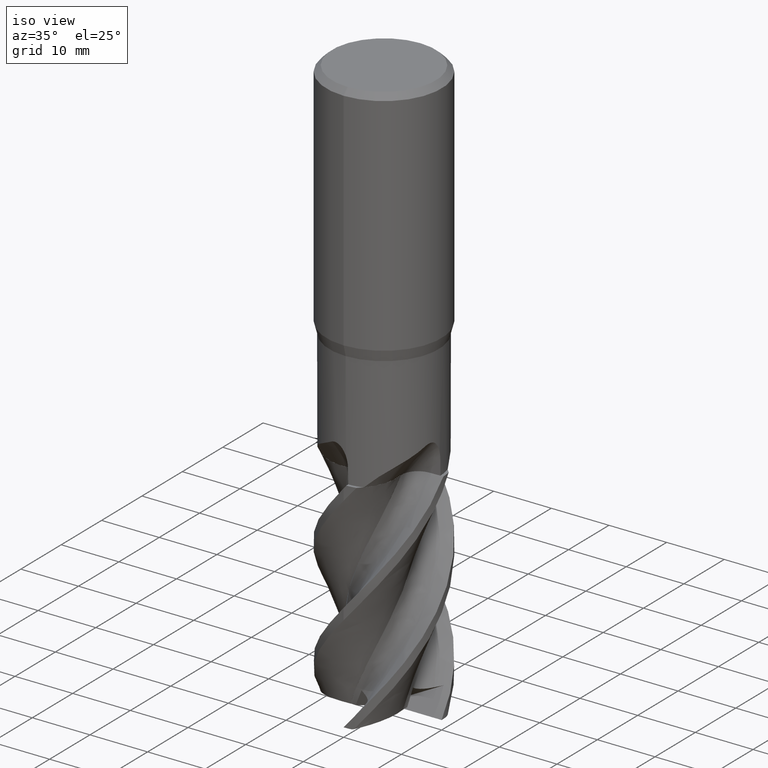
[diagram: clean part render]
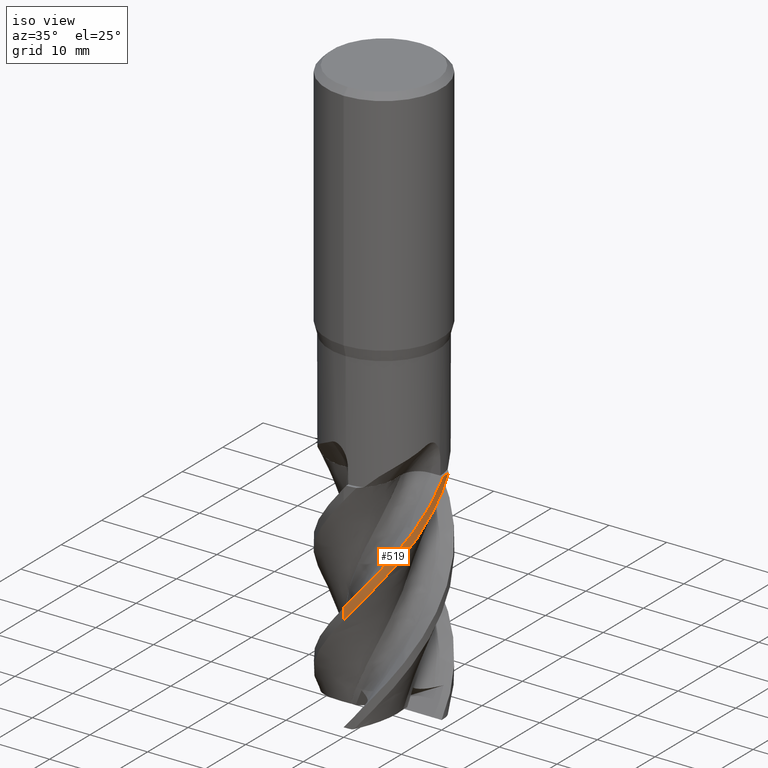
[diagram: same view with one face highlighted and labeled with its STEP entity id]
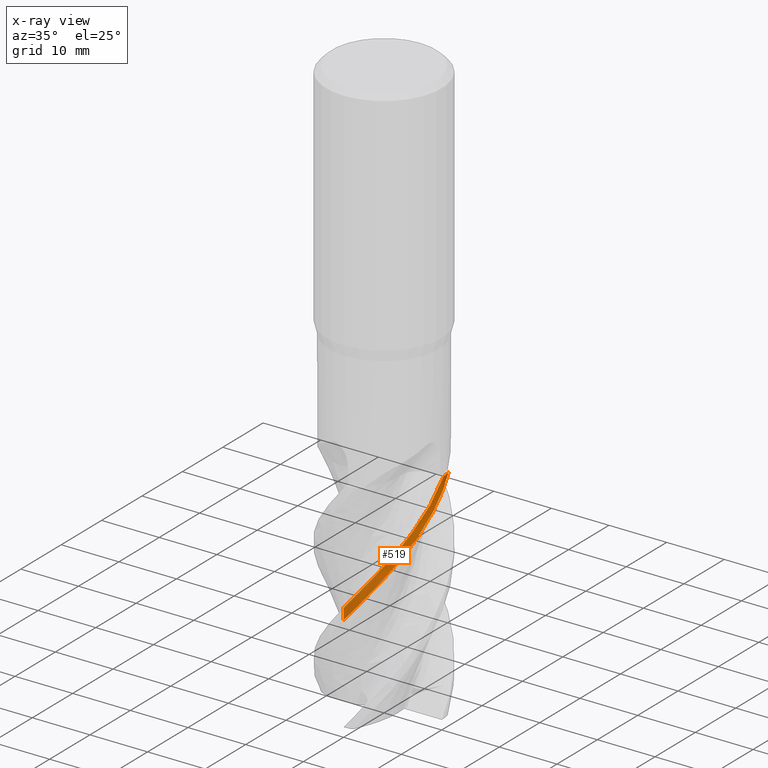
[diagram: x-ray of the same camera — body ghosted, the highlighted face saturated]
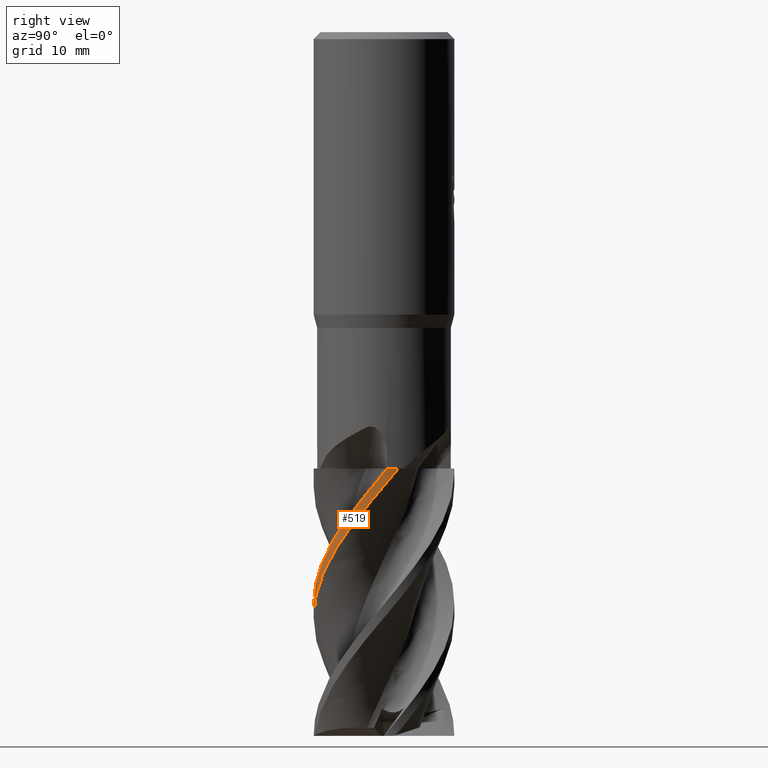
[diagram: same view with one face highlighted and labeled with its STEP entity id]
A machine part, iso view. The second image highlights one B-rep face of the part: STEP entity #519.
The next image is the same camera in x-ray: the body ghosted, the highlighted face saturated — about 0% of this face is hidden behind the body in this view.
A second angle (right view) of the same face is appended — the face is thin or edge-on in the first view.
In plain terms, the highlighted conical surface has half-angle 0 deg.
Its self-contained STEP definition (entity closure, byte-faithful):
#519=ADVANCED_FACE('',(#1475),#1476,.T.);
#649=VERTEX_POINT('',#1617);
#687=VERTEX_POINT('',#1658);
#721=EDGE_CURVE('',#687,#1181,#1693,.T.);
#777=VERTEX_POINT('',#1755);
#907=EDGE_CURVE('',#687,#649,#1893,.T.);
#1181=VERTEX_POINT('',#2194);
#1223=EDGE_CURVE('',#649,#777,#2242,.T.);
#1295=EDGE_CURVE('',#777,#1181,#2321,.T.);
#1475=FACE_OUTER_BOUND('',#2757,.T.);
#1476=CONICAL_SURFACE('',#2758,9.99995,2.63157894735621E-006);
#1617=CARTESIAN_POINT('',(9.78519421697264,2.06106141250669,-62.0));
#1658=CARTESIAN_POINT('',(1.67850642606862E-012,-9.99995578370923,-83.1978095066168));
#1693=LINE('',#4052,#4053);
#1755=CARTESIAN_POINT('',(9.98972429040193,0.451008438672389,-62.0));
#1893=B_SPLINE_CURVE_WITH_KNOTS('',3,(#5786,#5787,#5788,#5789,#5790,#5791,#5792,#5793,#5794,#5795,#5796,#5797,#5798,#5799,#5800,#5801,#5802,#5803,#5804,#5805,#5806,#5807,#5808,#5809,#5810,#5811,#5812,#5813,#5814,#5815,#5816,#5817,#5818,#5819,#5820,#5821),.UNSPECIFIED.,.F.,.F.,(4,2,2,2,2,2,2,2,2,2,2,2,2,2,2,2,2,4),(0.0,4.59320734126855,6.94880335420758,11.5993553662581,13.6317545591004,16.260923862877,17.4256617960653,19.7258373906148,24.2942597548981,25.4384139385894,29.8716777432233,32.0192538067041,36.0590950061642,37.5939142102604,41.4322466134332,42.3250975297501,43.928497497823,48.1224602192061),.UNSPECIFIED.);
#2194=CARTESIAN_POINT('',(4.70472558614338E-010,-9.99995068375359,-81.259826360799));
#2242=CIRCLE('',#9454,9.9999);
#2321=B_SPLINE_CURVE_WITH_KNOTS('',3,(#9900,#9901,#9902,#9903,#9904,#9905,#9906,#9907,#9908,#9909,#9910,#9911,#9912,#9913,#9914,#9915,#9916,#9917,#9918,#9919,#9920,#9921,#9922,#9923,#9924,#9925,#9926,#9927,#9928,#9929,#9930,#9931,#9932,#9933,#9934,#9935,#9936,#9937,#9938,#9939),.UNSPECIFIED.,.F.,.F.,(4,2,2,2,2,2,2,2,2,2,2,2,2,2,2,2,2,2,2,4),(0.0,2.30480189529895,4.68410020007811,7.03288339116904,11.6834955460757,13.7695380301898,16.3845924605886,18.458083328431,20.7561560651042,23.1484580736395,24.1989823300146,26.1998280600405,30.8580814014543,33.4031036239808,38.1646251640071,42.9208798005525,46.4830910845162,47.8263029897806,51.8284426502511,56.9867655885009),.UNSPECIFIED.);
#2757=EDGE_LOOP('',(#10772,#10773,#10774,#10775));
#2758=AXIS2_PLACEMENT_3D('',#10776,#10777,#10778);
#4052=CARTESIAN_POINT('',(1.22498162135769E-015,-9.99995,-81.0));
#4053=VECTOR('',#10974,1.0);
#5786=CARTESIAN_POINT('',(-9.86977801631955,-1.60856517075787,-100.0));
#5787=CARTESIAN_POINT('',(-9.7107963952434,-2.58401992060812,-98.8306473986634));
#5788=CARTESIAN_POINT('',(-9.4083985433116,-3.5287644008817,-97.6368745601126));
#5789=CARTESIAN_POINT('',(-8.75082182019483,-4.8660135441521,-95.8649065067338));
#5790=CARTESIAN_POINT('',(-8.4958854284321,-5.29859457323579,-95.2810462792775));
#5791=CARTESIAN_POINT('',(-7.63706351200326,-6.53226411699046,-93.491868838664));
#5792=CARTESIAN_POINT('',(-6.94625948259123,-7.26325337270023,-92.2821296451416));
#5793=CARTESIAN_POINT('',(-5.81052453200675,-8.15042339210991,-90.580855392972));
#5794=CARTESIAN_POINT('',(-5.44857794442005,-8.39692668894866,-90.0678882191782));
#5795=CARTESIAN_POINT('',(-4.57336812426987,-8.91131610640631,-88.8558048160957));
#5796=CARTESIAN_POINT('',(-4.05626469686163,-9.1581947823109,-88.1670369496894));
#5797=CARTESIAN_POINT('',(-3.28461880913812,-9.44852736345259,-87.1792534826557));
#5798=CARTESIAN_POINT('',(-3.04376384940838,-9.52888225196256,-86.8762129447181));
#5799=CARTESIAN_POINT('',(-2.3168477658464,-9.74084927589639,-85.9775844483009));
#5800=CARTESIAN_POINT('',(-1.82794377859317,-9.84436601020837,-85.3958513299341));
#5801=CARTESIAN_POINT('',(-0.33724387381377,-10.0442084561692,-83.6026837500665));
#5802=CARTESIAN_POINT('',(0.672473096227092,-10.0281241850163,-82.3884549000773));
#5803=CARTESIAN_POINT('',(1.91551590295862,-9.81802160464407,-80.9040319452064));
#5804=CARTESIAN_POINT('',(2.16236252136376,-9.76672044824064,-80.6085002421337));
#5805=CARTESIAN_POINT('',(3.3746223344418,-9.46554868478247,-79.1263518496059));
#5806=CARTESIAN_POINT('',(4.29706970247646,-9.08408583892197,-77.925157832934));
#5807=CARTESIAN_POINT('',(5.56106057079874,-8.32495462056487,-76.1772065319456));
#5808=CARTESIAN_POINT('',(5.95250092430322,-8.04980487808568,-75.6197190045112));
#5809=CARTESIAN_POINT('',(7.02933473659167,-7.1701641912824,-73.9619316150796));
#5810=CARTESIAN_POINT('',(7.65240865532501,-6.50157843257684,-72.8627087957007));
#5811=CARTESIAN_POINT('',(8.37660720564587,-5.47274482369622,-71.3731479101595));
#5812=CARTESIAN_POINT('',(8.55965315948838,-5.18182727415825,-70.9722495558989));
#5813=CARTESIAN_POINT('',(9.15260692808394,-4.12091754193273,-69.5302649605637));
#5814=CARTESIAN_POINT('',(9.47497766627305,-3.31240191131883,-68.4833648494961));
#5815=CARTESIAN_POINT('',(9.73886310265715,-2.27889019136236,-67.2114302881206));
#5816=CARTESIAN_POINT('',(9.78290615673946,-2.08182725194165,-66.9717168957067));
#5817=CARTESIAN_POINT('',(9.88949720453694,-1.52587094665533,-66.3033754065536));
#5818=CARTESIAN_POINT('',(9.938356371284,-1.1669666861583,-65.8797391699044));
#5819=CARTESIAN_POINT('',(10.0446282340605,0.15495706953699,-64.3012949287636));
#5820=CARTESIAN_POINT('',(9.98364009944924,1.11892475009128,-63.1393038090939));
#5821=CARTESIAN_POINT('',(9.78519421697273,2.06106141250656,-62.0));
#9454=AXIS2_PLACEMENT_3D('',#11493,#11494,#11495);
#9900=CARTESIAN_POINT('',(9.98972429040193,0.451008438672394,-62.0));
#9901=CARTESIAN_POINT('',(10.0120902724734,-0.0443582396446354,-62.586810240794));
#9902=CARTESIAN_POINT('',(9.99748225412556,-0.538476921355025,-63.1781398435295));
#9903=CARTESIAN_POINT('',(9.89486916559924,-1.53202584250799,-64.377841262681));
#9904=CARTESIAN_POINT('',(9.80424011487839,-2.03368060932425,-64.989057407567));
#9905=CARTESIAN_POINT('',(9.54770211688728,-3.0155897326726,-66.1947779619367));
#9906=CARTESIAN_POINT('',(9.38486747706296,-3.48958816290986,-66.7780496063555));
#9907=CARTESIAN_POINT('',(8.79031824200092,-4.87106062921594,-68.5698709213601));
#9908=CARTESIAN_POINT('',(8.25861438230232,-5.72759887374022,-69.7818991443943));
#9909=CARTESIAN_POINT('',(7.31264255040627,-6.83573772371703,-71.5001032281201));
#9910=CARTESIAN_POINT('',(6.9967446869978,-7.15909388998269,-72.0309961638549));
#9911=CARTESIAN_POINT('',(6.22870799040738,-7.84407423394571,-73.2610822935538));
#9912=CARTESIAN_POINT('',(5.76973135558729,-8.18755217511518,-73.9501101515125));
#9913=CARTESIAN_POINT('',(4.89906529665208,-8.72946456084346,-75.1775606340869));
#9914=CARTESIAN_POINT('',(4.50313851014507,-8.93965301995458,-75.7074958289145));
#9915=CARTESIAN_POINT('',(3.64972104457713,-9.32310123355266,-76.8074656137414));
#9916=CARTESIAN_POINT('',(3.18956896498647,-9.49008032319414,-77.3905560275707));
#9917=CARTESIAN_POINT('',(2.23515889418081,-9.76006487342666,-78.5803723381751));
#9918=CARTESIAN_POINT('',(1.73791169036898,-9.86083009807201,-79.1898556472469));
#9919=CARTESIAN_POINT('',(1.01335756522264,-9.95096440664512,-80.0615638420315));
#9920=CARTESIAN_POINT('',(0.790753696657141,-9.97115393961915,-80.3272151015896));
#9921=CARTESIAN_POINT('',(0.140767072959197,-10.0080682542258,-81.0965445674427));
#9922=CARTESIAN_POINT('',(-0.284824110560795,-10.0051407790472,-81.5943630827873));
#9923=CARTESIAN_POINT('',(-1.71241241280176,-9.90298746611478,-83.3014369723477));
#9924=CARTESIAN_POINT('',(-2.69902171193049,-9.68163003209263,-84.5165278603756));
#9925=CARTESIAN_POINT('',(-4.15329041079,-9.11338433906116,-86.3542482278656));
#9926=CARTESIAN_POINT('',(-4.65334890006675,-8.86909473839084,-87.0120622567255));
#9927=CARTESIAN_POINT('',(-6.03637631581529,-8.04144359911085,-88.945160413294));
#9928=CARTESIAN_POINT('',(-6.69874605559893,-7.45325839113661,-89.9989827651578));
#9929=CARTESIAN_POINT('',(-7.60900902744851,-6.52122551706257,-91.5282186060612));
#9930=CARTESIAN_POINT('',(-8.01412587501843,-6.01544700647727,-92.3018654996874));
#9931=CARTESIAN_POINT('',(-8.62929397817644,-5.07603968310065,-93.6505906758236));
#9932=CARTESIAN_POINT('',(-8.86420652749595,-4.65399885109208,-94.2296163586125));
#9933=CARTESIAN_POINT('',(-9.14509828372667,-4.04971727357606,-95.0216379546917));
#9934=CARTESIAN_POINT('',(-9.2176883724385,-3.88170711012633,-95.2381795546894));
#9935=CARTESIAN_POINT('',(-9.48873544529544,-3.20354312412668,-96.0977112363142));
#9936=CARTESIAN_POINT('',(-9.65122271482649,-2.67644827161982,-96.7495828928725));
#9937=CARTESIAN_POINT('',(-9.92287507141487,-1.43208125549526,-98.2772017315009));
#9938=CARTESIAN_POINT('',(-10.0006589820668,-0.71397030843787,-99.1442206662996));
#9939=CARTESIAN_POINT('',(-9.99999576610139,0.00920206249915596,-100.0));
#10772=ORIENTED_EDGE('',*,*,#721,.F.);
#10773=ORIENTED_EDGE('',*,*,#907,.T.);
#10774=ORIENTED_EDGE('',*,*,#1223,.T.);
#10775=ORIENTED_EDGE('',*,*,#1295,.T.);
#10776=CARTESIAN_POINT('',(0.0,0.0,-81.0));
#10777=DIRECTION('',(0.0,-0.0,-1.0));
#10778=DIRECTION('',(0.0,1.0,0.0));
#10974=DIRECTION('',(-3.2226482995139E-022,2.63157894735318E-006,0.999999999996537));
#11493=CARTESIAN_POINT('',(0.0,0.0,-62.0));
#11494=DIRECTION('',(0.0,0.0,-1.0));
#11495=DIRECTION('',(0.0,1.0,0.0));